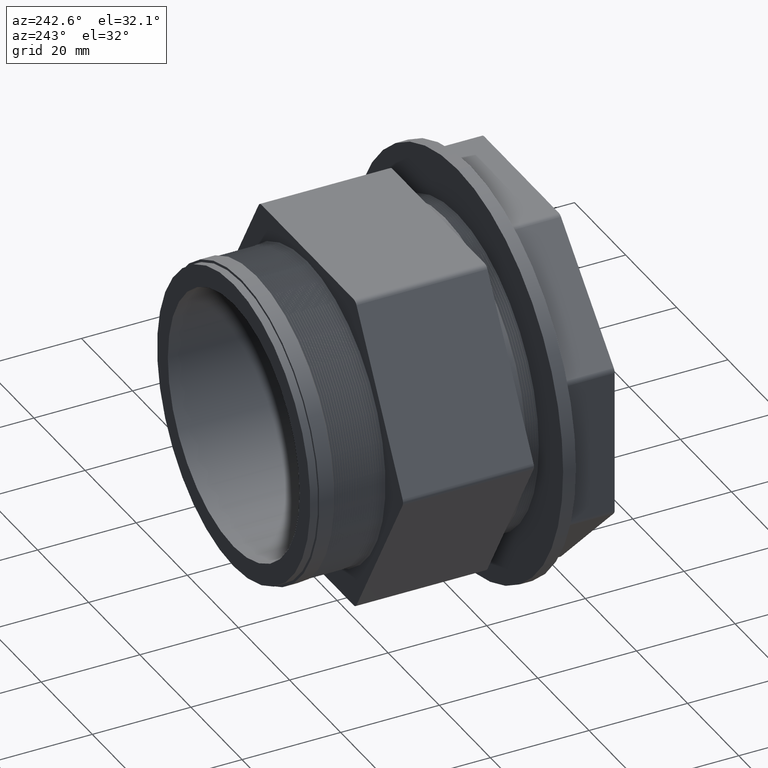
[diagram: clean part render]
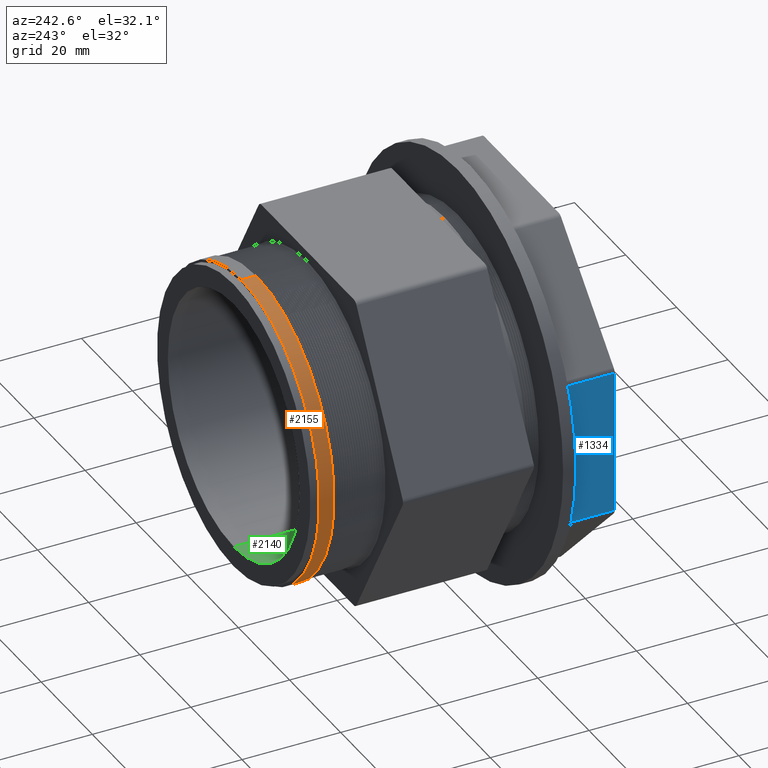
[diagram: same view with three faces highlighted in distinct colors, each labeled with its STEP entity id]
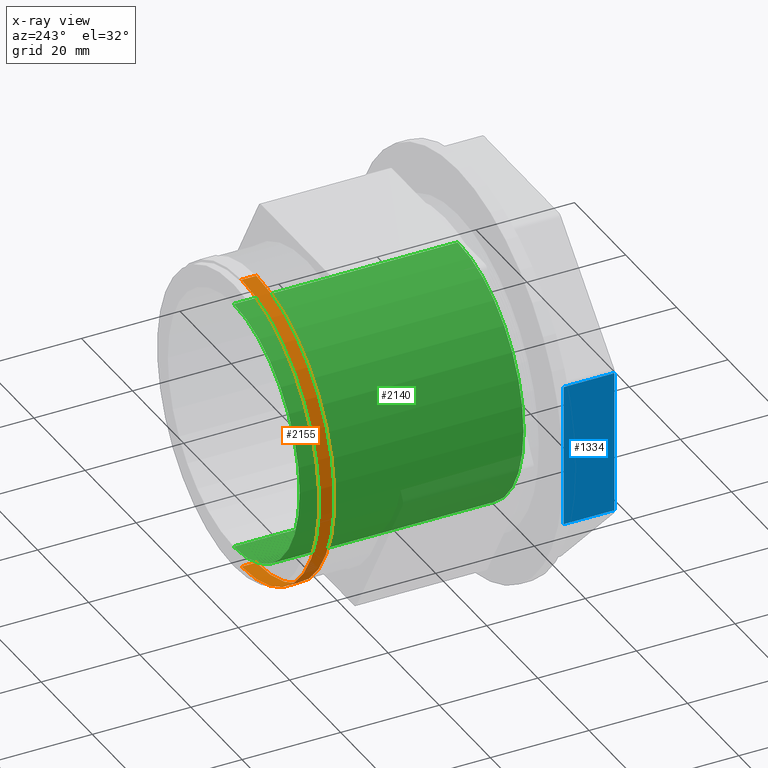
[diagram: x-ray of the same camera — body ghosted, the three highlighted faces saturated]
A machine part, auxiliary view with three faces highlighted in distinct colors.
The next image is the same camera in x-ray (body ghosted, the three faces saturated) — at least one of them is partly hidden behind the body in this view.
Their STEP definitions:

[orange] entity #2155 — the highlighted conical surface has half-angle 0.018 deg.
#10 = FACE_OUTER_BOUND ( 'NONE', #2131, .T. ) ;
#19 = DIRECTION ( 'NONE',  ( 0.0000000000000000000, 0.0000000000000000000, -1.000000000000000000 ) ) ;
#20 = DIRECTION ( 'NONE',  ( 0.0000000000000000000, -1.000000000000000000, 0.0000000000000000000 ) ) ;
#28 = CONICAL_SURFACE ( 'NONE', #33, 1.199834123902437000, 0.0003141592653517886600 ) ;
#33 = AXIS2_PLACEMENT_3D ( 'NONE', #40, #20, #19 ) ;
#40 = CARTESIAN_POINT ( 'NONE',  ( 0.0000000000000000000, 2.338000000000000100, 0.0000000000000000000 ) ) ;
#217 = DIRECTION ( 'NONE',  ( 0.0000000000000000000, -0.9999999506519784400, -0.0003141592601840760000 ) ) ;
#218 = VECTOR ( 'NONE', #217, 39.37007874015748100 ) ;
#219 = CARTESIAN_POINT ( 'NONE',  ( 0.0000000000000000000, 2.338000000000000100, -1.199834123902437000 ) ) ;
#220 = LINE ( 'NONE', #219, #218 ) ;
#239 = DIRECTION ( 'NONE',  ( 3.847341324069292100E-020, -0.9999999506519784400, 0.0003141592601840760000 ) ) ;
#240 = VECTOR ( 'NONE', #239, 39.37007874015748100 ) ;
#241 = CARTESIAN_POINT ( 'NONE',  ( 1.469373019344888300E-016, 2.338000000000000100, 1.199834123902437000 ) ) ;
#242 = LINE ( 'NONE', #241, #240 ) ;
#274 = CARTESIAN_POINT ( 'NONE',  ( 0.0000000000000000000, 2.338000000000000100, -1.199834123902437000 ) ) ;
#283 = CARTESIAN_POINT ( 'NONE',  ( 1.469395731926099900E-016, 2.338000000000000100, 1.199834123902437000 ) ) ;
#1074 = AXIS2_PLACEMENT_3D ( 'NONE', #1101, #1121, #1120 ) ;
#1075 = CIRCLE ( 'NONE', #1074, 1.199871216362446300 ) ;
#1080 = DIRECTION ( 'NONE',  ( 0.0000000000000000000, 0.0000000000000000000, 1.000000000000000000 ) ) ;
#1081 = DIRECTION ( 'NONE',  ( -0.0000000000000000000, 1.000000000000000000, -0.0000000000000000000 ) ) ;
#1082 = CARTESIAN_POINT ( 'NONE',  ( 0.0000000000000000000, 2.338000000000000100, 0.0000000000000000000 ) ) ;
#1083 = AXIS2_PLACEMENT_3D ( 'NONE', #1082, #1081, #1080 ) ;
#1100 = CIRCLE ( 'NONE', #1083, 1.199834123902437000 ) ;
#1101 = CARTESIAN_POINT ( 'NONE',  ( 0.0000000000000000000, 2.219931036643264300, 0.0000000000000000000 ) ) ;
#1120 = DIRECTION ( 'NONE',  ( 0.0000000000000000000, 0.0000000000000000000, 1.000000000000000000 ) ) ;
#1121 = DIRECTION ( 'NONE',  ( 0.0000000000000000000, -1.000000000000000000, 0.0000000000000000000 ) ) ;
#1572 = VERTEX_POINT ( 'NONE', #3403 ) ;
#1765 = VERTEX_POINT ( 'NONE', #3744 ) ;
#2131 = EDGE_LOOP ( 'NONE', ( #2132, #2133, #2135, #2136 ) ) ;
#2132 = ORIENTED_EDGE ( 'NONE', *, *, #2234, .F. ) ;
#2133 = ORIENTED_EDGE ( 'NONE', *, *, #2134, .F. ) ;
#2134 = EDGE_CURVE ( 'NONE', #2232, #2231, #1100, .T. ) ;
#2135 = ORIENTED_EDGE ( 'NONE', *, *, #2240, .T. ) ;
#2136 = ORIENTED_EDGE ( 'NONE', *, *, #2137, .F. ) ;
#2137 = EDGE_CURVE ( 'NONE', #1572, #1765, #1075, .T. ) ;
#2155 = ADVANCED_FACE ( 'NONE', ( #10 ), #28, .T. ) ;
#2231 = VERTEX_POINT ( 'NONE', #283 ) ;
#2232 = VERTEX_POINT ( 'NONE', #274 ) ;
#2234 = EDGE_CURVE ( 'NONE', #2231, #1572, #242, .T. ) ;
#2240 = EDGE_CURVE ( 'NONE', #2232, #1765, #220, .T. ) ;
#3403 = CARTESIAN_POINT ( 'NONE',  ( 1.469418444507311100E-016, 2.219931036643264300, 1.199871216362446300 ) ) ;
#3744 = CARTESIAN_POINT ( 'NONE',  ( 0.0000000000000000000, 2.219931036643264300, -1.199871216362446300 ) ) ;

[blue] entity #1334 — the highlighted planar face has unit normal (-1, 0, -0).
#1246 = VERTEX_POINT ( 'NONE', #2766 ) ;
#1305 = VERTEX_POINT ( 'NONE', #2972 ) ;
#1306 = EDGE_CURVE ( 'NONE', #1305, #1246, #2971, .T. ) ;
#1334 = ADVANCED_FACE ( 'NONE', ( #2879 ), #2877, .T. ) ;
#1335 = EDGE_LOOP ( 'NONE', ( #1336, #1337, #1430, #1431 ) ) ;
#1336 = ORIENTED_EDGE ( 'NONE', *, *, #1306, .F. ) ;
#1337 = ORIENTED_EDGE ( 'NONE', *, *, #1429, .T. ) ;
#1382 = VERTEX_POINT ( 'NONE', #3042 ) ;
#1390 = EDGE_CURVE ( 'NONE', #1391, #1382, #3035, .T. ) ;
#1391 = VERTEX_POINT ( 'NONE', #3031 ) ;
#1429 = EDGE_CURVE ( 'NONE', #1305, #1391, #3135, .T. ) ;
#1430 = ORIENTED_EDGE ( 'NONE', *, *, #1390, .T. ) ;
#1431 = ORIENTED_EDGE ( 'NONE', *, *, #1475, .T. ) ;
#1475 = EDGE_CURVE ( 'NONE', #1382, #1246, #3314, .T. ) ;
#2766 = CARTESIAN_POINT ( 'NONE',  ( -1.435000000000000500, 0.1019999999999999500, -0.5736857838867366300 ) ) ;
#2877 = PLANE ( 'NONE',  #2943 ) ;
#2879 = FACE_OUTER_BOUND ( 'NONE', #1335, .T. ) ;
#2940 = DIRECTION ( 'NONE',  ( -2.298001559806967700E-016, 0.0000000000000000000, 1.000000000000000000 ) ) ;
#2941 = DIRECTION ( 'NONE',  ( -1.000000000000000000, 0.0000000000000000000, -2.298001559806967700E-016 ) ) ;
#2942 = CARTESIAN_POINT ( 'NONE',  ( -1.435000000000000500, 0.5100000000000000100, 0.5943964620053906500 ) ) ;
#2943 = AXIS2_PLACEMENT_3D ( 'NONE', #2942, #2941, #2940 ) ;
#2968 = DIRECTION ( 'NONE',  ( 2.298001559806967700E-016, 0.0000000000000000000, -1.000000000000000000 ) ) ;
#2969 = VECTOR ( 'NONE', #2968, 39.37007874015748100 ) ;
#2970 = CARTESIAN_POINT ( 'NONE',  ( -1.435000000000000500, 0.1019999999999999500, -2.217571505213724900E-016 ) ) ;
#2971 = LINE ( 'NONE', #2970, #2969 ) ;
#2972 = CARTESIAN_POINT ( 'NONE',  ( -1.435000000000000500, 0.1019999999999999500, 0.5736857838867357500 ) ) ;
#3031 = CARTESIAN_POINT ( 'NONE',  ( -1.435000000000000500, 0.5100000000000000100, 0.5736857838867357500 ) ) ;
#3032 = DIRECTION ( 'NONE',  ( 2.298001559806967700E-016, 0.0000000000000000000, -1.000000000000000000 ) ) ;
#3033 = VECTOR ( 'NONE', #3032, 39.37007874015748100 ) ;
#3034 = CARTESIAN_POINT ( 'NONE',  ( -1.435000000000000500, 0.5100000000000000100, 0.5943964620053906500 ) ) ;
#3035 = LINE ( 'NONE', #3034, #3033 ) ;
#3042 = CARTESIAN_POINT ( 'NONE',  ( -1.435000000000000100, 0.5100000000000000100, -0.5736857838867363000 ) ) ;
#3132 = DIRECTION ( 'NONE',  ( -0.0000000000000000000, 1.000000000000000000, -0.0000000000000000000 ) ) ;
#3133 = VECTOR ( 'NONE', #3132, 39.37007874015748100 ) ;
#3134 = CARTESIAN_POINT ( 'NONE',  ( -1.435000000000000500, 0.5100000000000000100, 0.5736857838867357500 ) ) ;
#3135 = LINE ( 'NONE', #3134, #3133 ) ;
#3311 = DIRECTION ( 'NONE',  ( 0.0000000000000000000, -1.000000000000000000, 0.0000000000000000000 ) ) ;
#3312 = VECTOR ( 'NONE', #3311, 39.37007874015748100 ) ;
#3313 = CARTESIAN_POINT ( 'NONE',  ( -1.435000000000000100, 0.5100000000000000100, -0.5736857838867366300 ) ) ;
#3314 = LINE ( 'NONE', #3313, #3312 ) ;

[green] entity #2140 — the highlighted cylindrical surface (partial cylindrical patch) has radius 25.781 mm, axis along (-0, 1, -0).
#147 = DIRECTION ( 'NONE',  ( 0.0000000000000000000, 0.0000000000000000000, 1.000000000000000000 ) ) ;
#148 = DIRECTION ( 'NONE',  ( -0.0000000000000000000, 1.000000000000000000, -0.0000000000000000000 ) ) ;
#149 = CARTESIAN_POINT ( 'NONE',  ( 0.0000000000000000000, 0.6119999999999998800, 0.0000000000000000000 ) ) ;
#150 = AXIS2_PLACEMENT_3D ( 'NONE', #149, #148, #147 ) ;
#151 = CIRCLE ( 'NONE', #150, 1.014999999999999900 ) ;
#153 = CARTESIAN_POINT ( 'NONE',  ( 1.243016501134563300E-016, 1.843561561718224600, -1.014999999999999900 ) ) ;
#154 = LINE ( 'NONE', #153, #179 ) ;
#177 = CARTESIAN_POINT ( 'NONE',  ( 1.243016501134563300E-016, 2.399999999999999900, -1.014999999999999900 ) ) ;
#178 = DIRECTION ( 'NONE',  ( -0.0000000000000000000, 1.000000000000000000, -0.0000000000000000000 ) ) ;
#179 = VECTOR ( 'NONE', #178, 39.37007874015748100 ) ;
#1085 = DIRECTION ( 'NONE',  ( 0.0000000000000000000, 0.0000000000000000000, 1.000000000000000000 ) ) ;
#1086 = DIRECTION ( 'NONE',  ( -0.0000000000000000000, 1.000000000000000000, -0.0000000000000000000 ) ) ;
#1087 = CARTESIAN_POINT ( 'NONE',  ( 0.0000000000000000000, 1.843561561718224600, 0.0000000000000000000 ) ) ;
#1088 = AXIS2_PLACEMENT_3D ( 'NONE', #1087, #1086, #1085 ) ;
#1089 = CYLINDRICAL_SURFACE ( 'NONE', #1088, 1.014999999999999900 ) ;
#1090 = FACE_OUTER_BOUND ( 'NONE', #2144, .T. ) ;
#1133 = DIRECTION ( 'NONE',  ( 0.0000000000000000000, 0.0000000000000000000, 1.000000000000000000 ) ) ;
#1136 = CARTESIAN_POINT ( 'NONE',  ( 1.243016501134563300E-016, 0.6119999999999998800, -1.014999999999999900 ) ) ;
#1137 = DIRECTION ( 'NONE',  ( -0.0000000000000000000, 1.000000000000000000, -0.0000000000000000000 ) ) ;
#1138 = CARTESIAN_POINT ( 'NONE',  ( 0.0000000000000000000, 2.399999999999999900, 0.0000000000000000000 ) ) ;
#1143 = DIRECTION ( 'NONE',  ( -0.0000000000000000000, 1.000000000000000000, -0.0000000000000000000 ) ) ;
#1144 = VECTOR ( 'NONE', #1143, 39.37007874015748100 ) ;
#1145 = CARTESIAN_POINT ( 'NONE',  ( 0.0000000000000000000, 1.843561561718224600, 1.014999999999999900 ) ) ;
#1146 = LINE ( 'NONE', #1145, #1144 ) ;
#1152 = AXIS2_PLACEMENT_3D ( 'NONE', #1138, #1137, #1133 ) ;
#1153 = CIRCLE ( 'NONE', #1152, 1.014999999999999900 ) ;
#1160 = CARTESIAN_POINT ( 'NONE',  ( 0.0000000000000000000, 2.399999999999999900, 1.014999999999999900 ) ) ;
#1161 = CARTESIAN_POINT ( 'NONE',  ( 0.0000000000000000000, 0.6119999999999998800, 1.014999999999999900 ) ) ;
#2077 = VERTEX_POINT ( 'NONE', #1136 ) ;
#2078 = VERTEX_POINT ( 'NONE', #1161 ) ;
#2079 = EDGE_CURVE ( 'NONE', #2254, #2080, #1153, .T. ) ;
#2080 = VERTEX_POINT ( 'NONE', #1160 ) ;
#2081 = ORIENTED_EDGE ( 'NONE', *, *, #2082, .F. ) ;
#2082 = EDGE_CURVE ( 'NONE', #2078, #2080, #1146, .T. ) ;
#2140 = ADVANCED_FACE ( 'NONE', ( #1090 ), #1089, .F. ) ;
#2141 = ORIENTED_EDGE ( 'NONE', *, *, #2255, .F. ) ;
#2144 = EDGE_LOOP ( 'NONE', ( #2141, #2252, #2264, #2081 ) ) ;
#2252 = ORIENTED_EDGE ( 'NONE', *, *, #2253, .T. ) ;
#2253 = EDGE_CURVE ( 'NONE', #2077, #2254, #154, .T. ) ;
#2254 = VERTEX_POINT ( 'NONE', #177 ) ;
#2255 = EDGE_CURVE ( 'NONE', #2077, #2078, #151, .T. ) ;
#2264 = ORIENTED_EDGE ( 'NONE', *, *, #2079, .T. ) ;